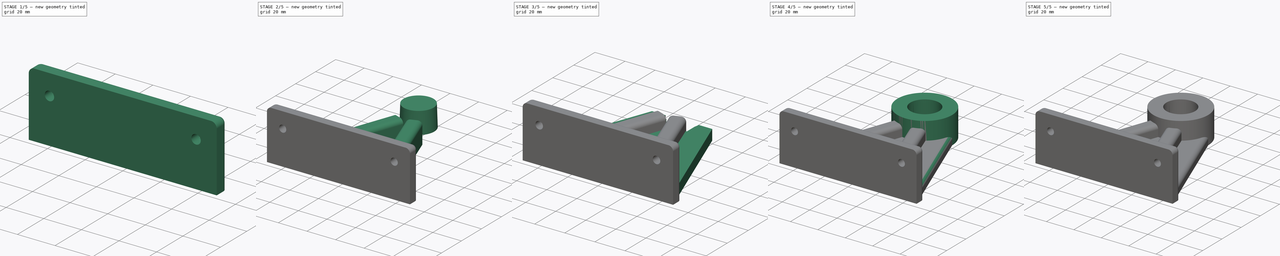
[diagram: build sequence overview — one tinted view per stage of 5, left to right]
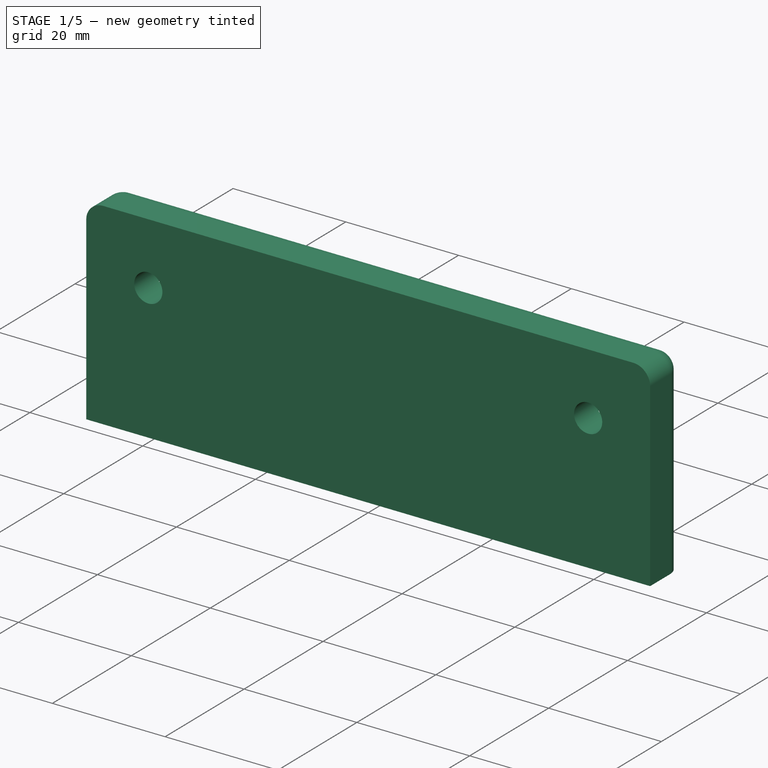
[diagram: stage 1 of 5 — iso view after this stage's code; geometry added in this stage tinted green]
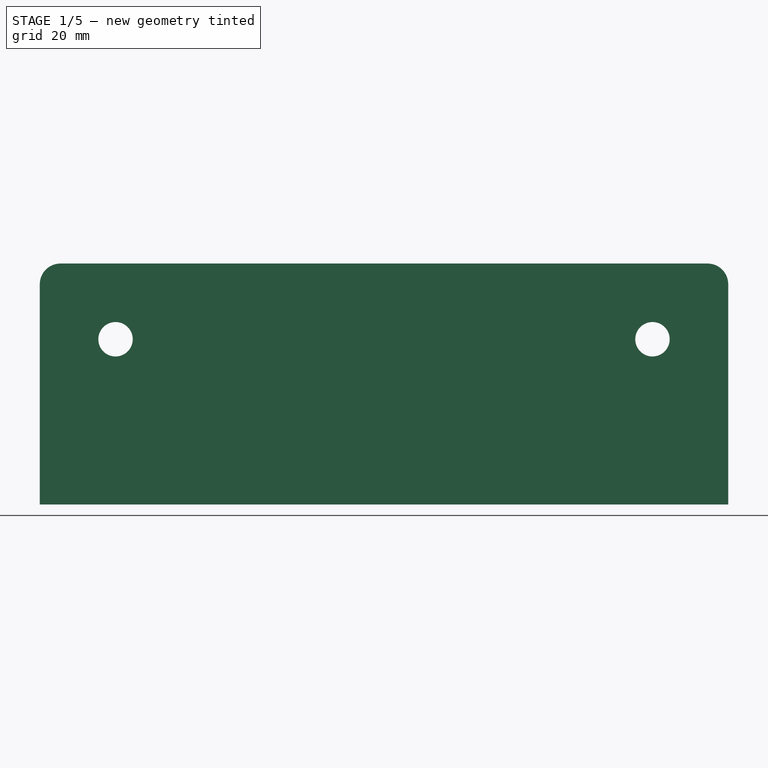
[diagram: stage 1 of 5 — front view after this stage's code; geometry added in this stage tinted green]
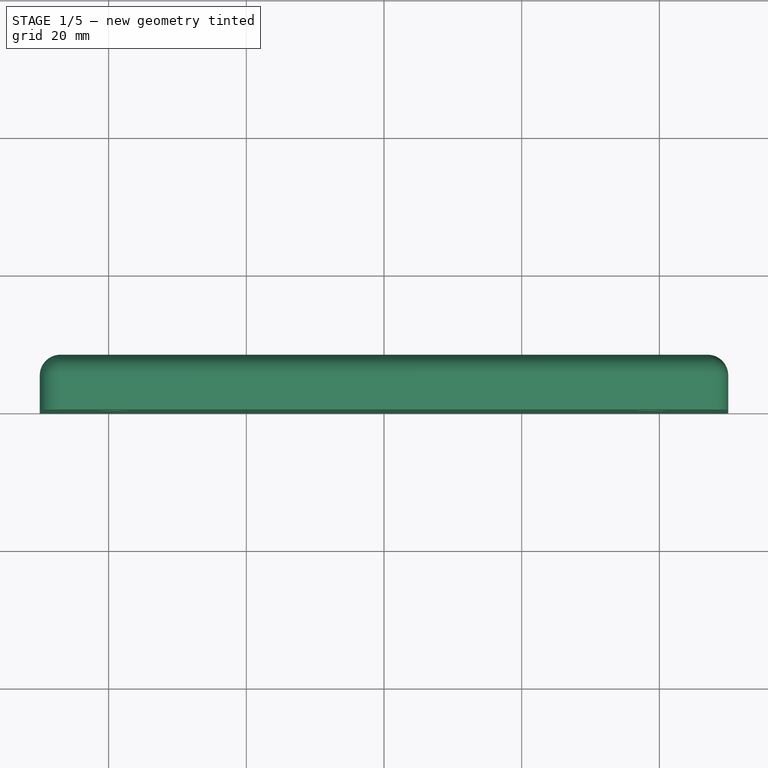
[diagram: stage 1 of 5 — top view after this stage's code; geometry added in this stage tinted green]
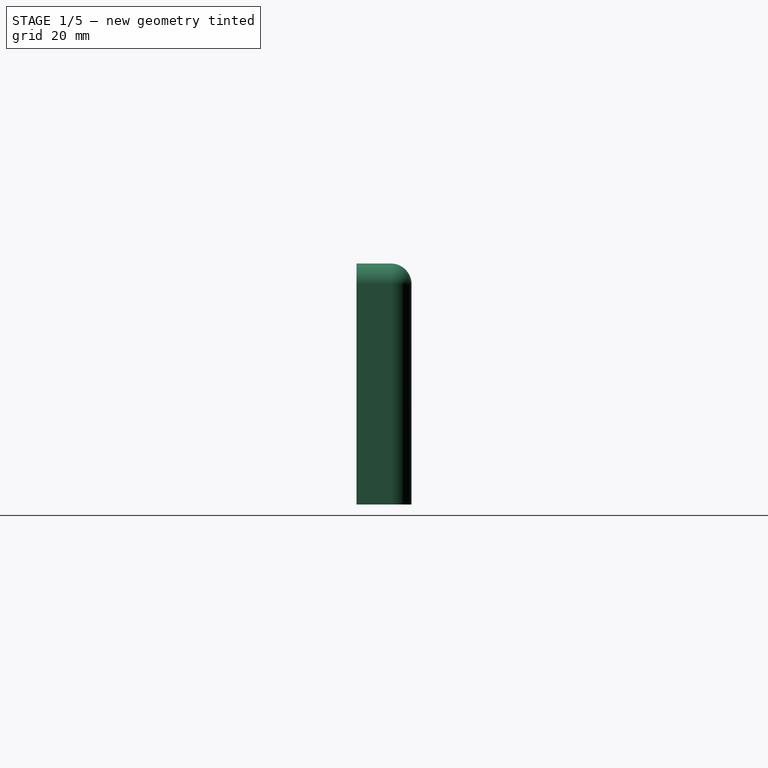
[diagram: stage 1 of 5 — right view after this stage's code; geometry added in this stage tinted green]
FCSTD DOCUMENT  (FreeCAD 0.20RUnknown)
Label: CurtainRailMount
License: All rights reserved
LicenseURL: http://en.wikipedia.org/wiki/All_rights_reserved
objects: Sketcher::SketchObject×7, Part::Face×6, Part::Extrusion×6, Part::Cut×5, Part::Fillet×5, Part::Box×3, Part::Chamfer×2, Part::Compound×2, Part::Cone×2, App::MeasureDistance×2, Spreadsheet::Sheet×1, Part::Cylinder×1
note: 39 computed .brp shape members not serialized (recipe doc carries the construction recipe); baked Part::Feature solids carry a one-line shape summary decoded from their .brp

FEATURE [Part::Box] Box  label="Cube"
  AttacherType = Attacher::AttachEngine3D
  Height = 35
  Length = 100
  Placement = pos=(-50,-80,0) rot=(0,0,1;0rad)
  Width = 8
FEATURE [Part::Fillet] Fillet002
  Base = -> Box
  Edges = 5 edges r=3: [Edge2,Edge3,Edge6,Edge7,Edge12]
FEATURE [Sketcher::SketchObject] Sketch006
  ExternalGeometry = -> [Fillet002]
  FullyConstrained = true
  MapMode = 5
  Placement = pos=(0,-72,0) rot=(0,0.707107,0.707107;3.14159rad)
  Support = -> [Fillet002]
  sketch-geometry (2):
    g0: Circle CenterX=-39 CenterY=24 CenterZ=0 NormalX=0 NormalY=0 NormalZ=1 AngleXU=0 Radius=2.5
    g1: Circle CenterX=39 CenterY=24 CenterZ=0 NormalX=0 NormalY=0 NormalZ=1 AngleXU=0 Radius=2.5
  constraints (6):
    c: Diameter(g1) = 5
    c: Diameter(g0) = 5
    c: Horizontal(g0,g1)
    c: DistanceY(g1,g-5) = 8
    c: DistanceX(g1,g-5) = 8
    c: DistanceX(g-4,g0) = 8
FEATURE [Part::Face] Face005
  FaceMakerClass = Part::FaceMakerBullseye
  Sources = -> [Sketch006]
FEATURE [Part::Extrusion] Extrude005
  Base = -> Face005
  Dir = (0,1,0)
  DirMode = 2
  FaceMakerClass = Part::FaceMakerBullseye
  LengthFwd = -10
  LengthRev = 0
  Solid = false
  Symmetric = false
FEATURE [Part::Cut] Cut004
  Base = -> Fillet002
  Tool = -> Extrude005
FEATURE [Part::Chamfer] Chamfer001
  Base = -> Cut004
  Edges = 2 edges r=2.5: [Edge25,Edge27]
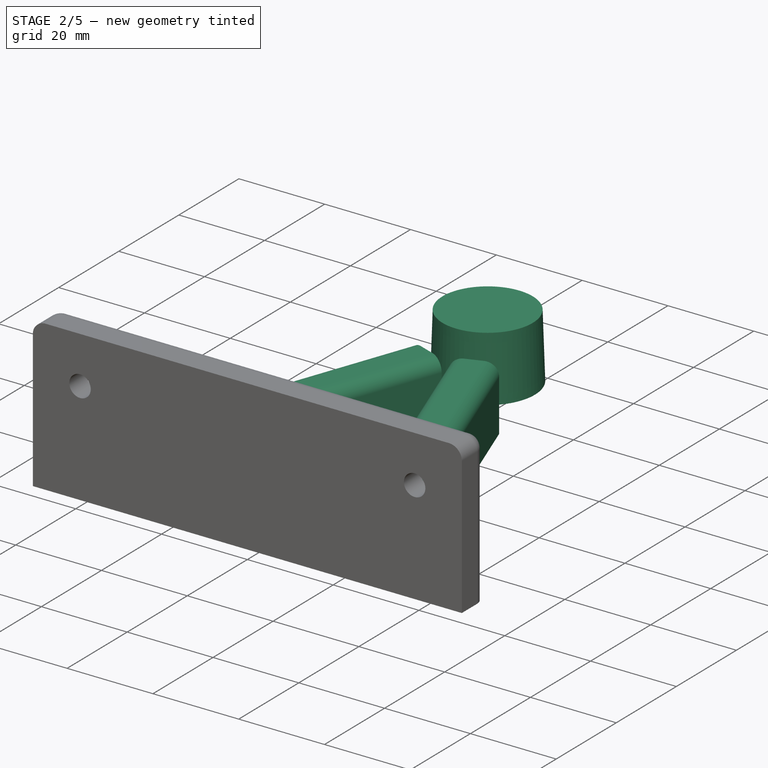
[diagram: stage 2 of 5 — iso view after this stage's code; geometry added in this stage tinted green]
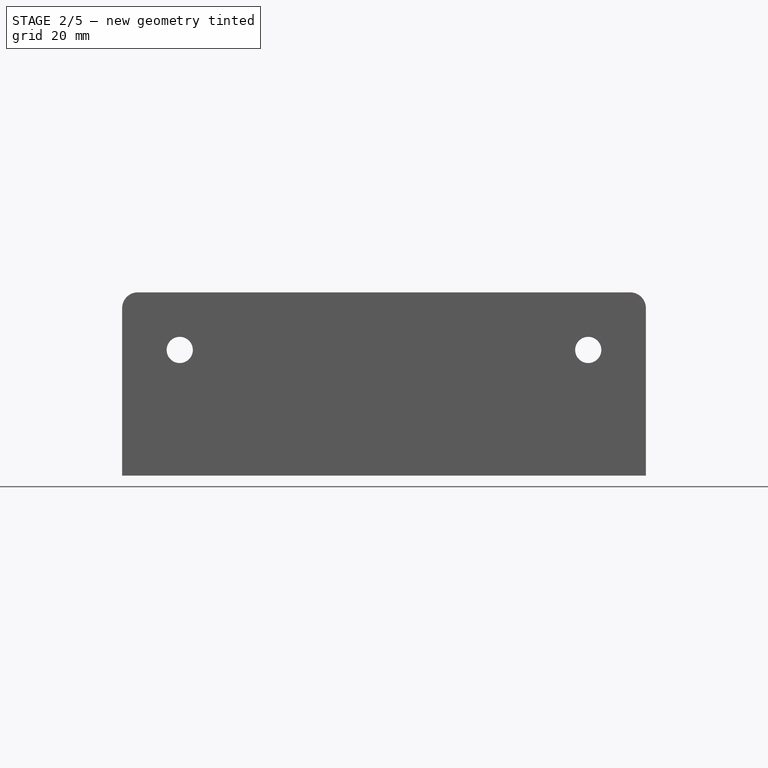
[diagram: stage 2 of 5 — front view after this stage's code; geometry added in this stage tinted green]
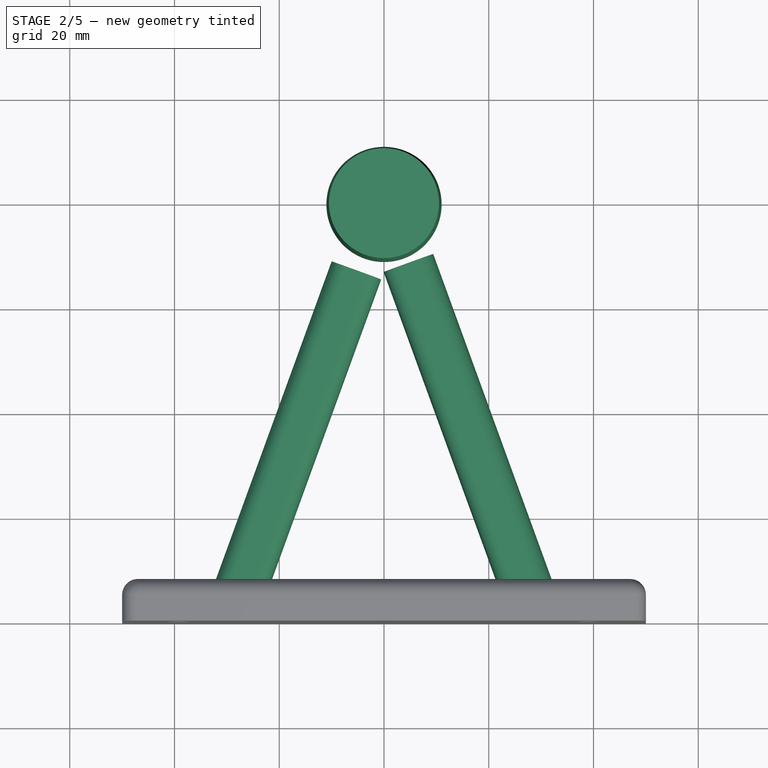
[diagram: stage 2 of 5 — top view after this stage's code; geometry added in this stage tinted green]
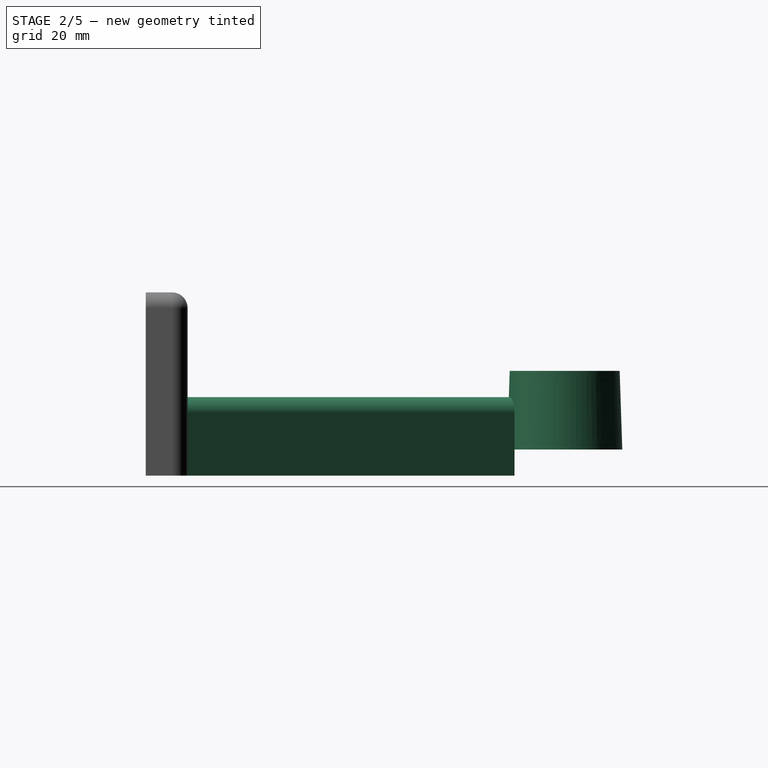
[diagram: stage 2 of 5 — right view after this stage's code; geometry added in this stage tinted green]
FEATURE [Part::Cone] Cone001
  Angle = 360
  AttacherType = Attacher::AttachEngine3D
  Height = 15
  Placement = pos=(0,0,5) rot=(0,0,1;0rad)
  Radius1 = 11
  Radius2 = 10.5
  expr: Radius1 = (Spreadsheet.rodDiameter + Spreadsheet.clearance * 2) / 2
  expr: Radius2 = (Spreadsheet.rodDiameter + Spreadsheet.clearance) / 2
FEATURE [Part::Box] Box001  label="Cube001"
  AttacherType = Attacher::AttachEngine3D
  Height = 15
  Length = 68
  Placement = pos=(-10,-11,0) rot=(0,0,-1;1.91986rad)
  Width = 10
FEATURE [Part::Box] Box002  label="Cube002"
  AttacherType = Attacher::AttachEngine3D
  Height = 15
  Length = 68
  Placement = pos=(0,-13,0) rot=(0,0,-1;1.22173rad)
  Width = 10
FEATURE [App::MeasureDistance] Distance001  label="Distance: 12.03 mm"
  Distance = 12.0309
  P1 = (-31.7249,-72,32)
  P2 = (-43.7559,-72,32)
FEATURE [App::MeasureDistance] Distance  label="Distance: 11.60 mm"
  Distance = 11.6011
  P1 = (32.2152,-72.034,32.3016)
  P2 = (43.8124,-72,32)
FEATURE [Part::Fillet] Fillet003
  Base = -> Box001
  Edges = 2 edges r=3: [Edge10,Edge12]
FEATURE [Part::Fillet] Fillet004
  Base = -> Box002
  Edges = 2 edges r=3: [Edge10,Edge12]
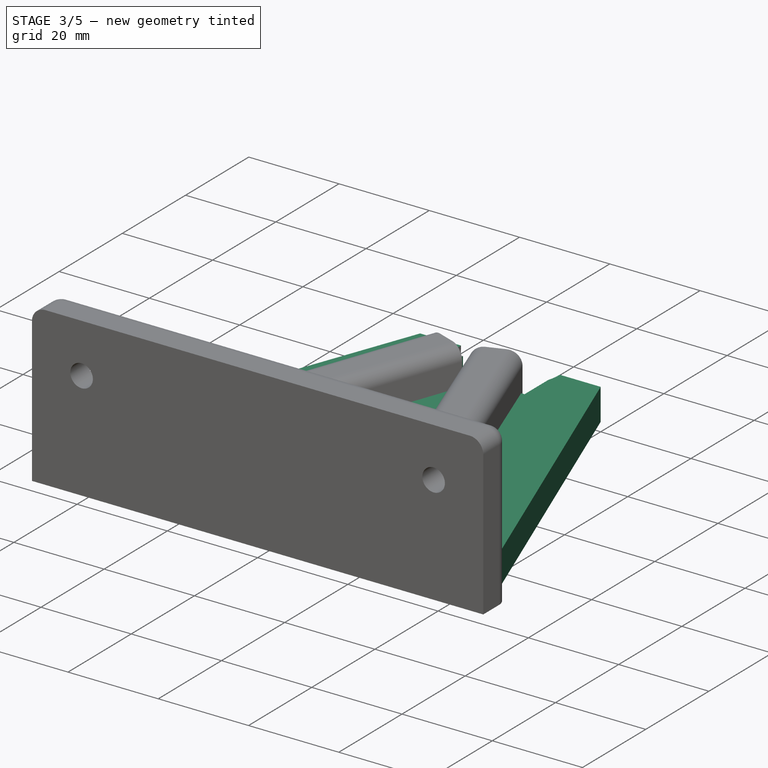
[diagram: stage 3 of 5 — iso view after this stage's code; geometry added in this stage tinted green]
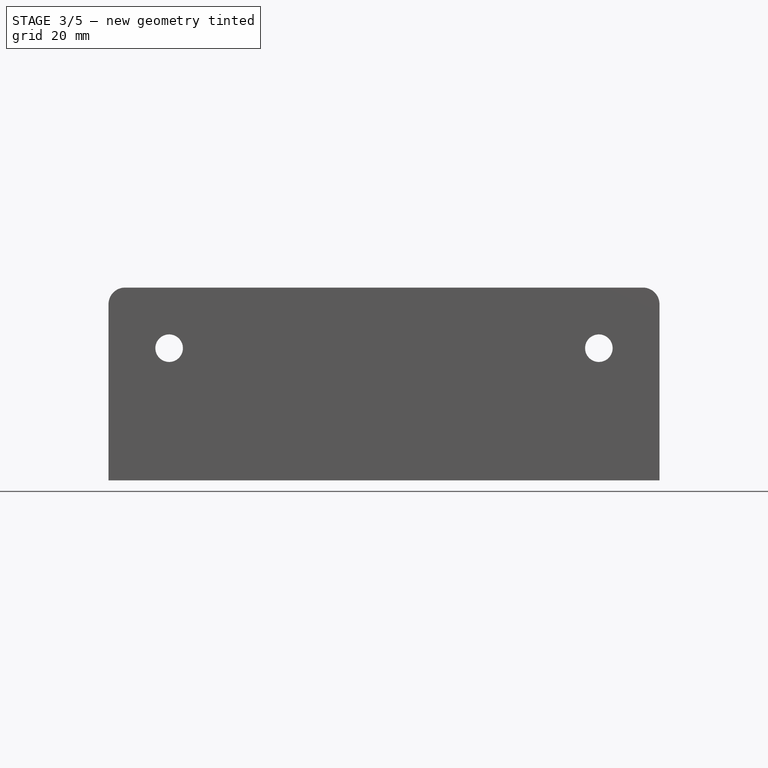
[diagram: stage 3 of 5 — front view after this stage's code; geometry added in this stage tinted green]
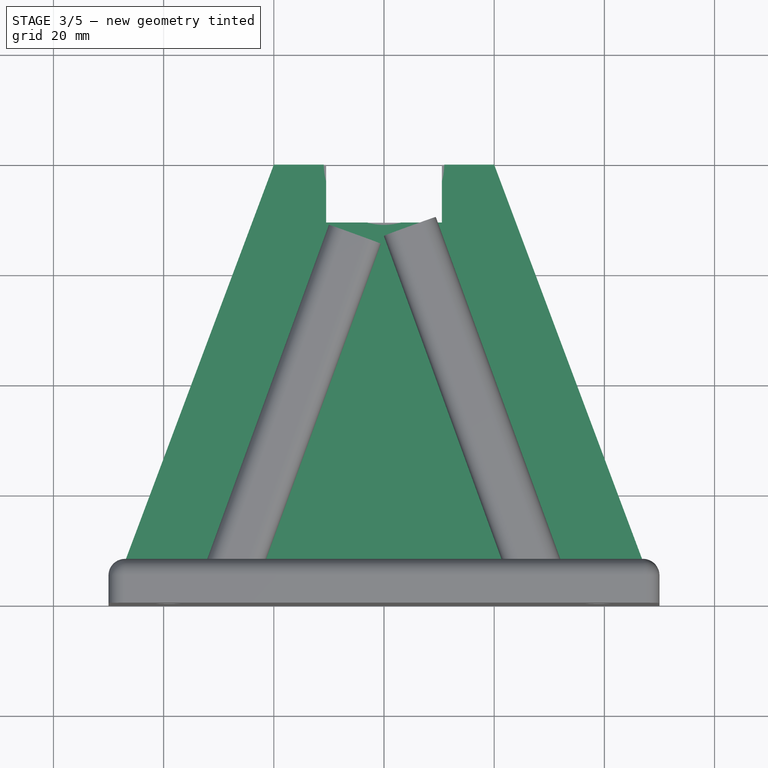
[diagram: stage 3 of 5 — top view after this stage's code; geometry added in this stage tinted green]
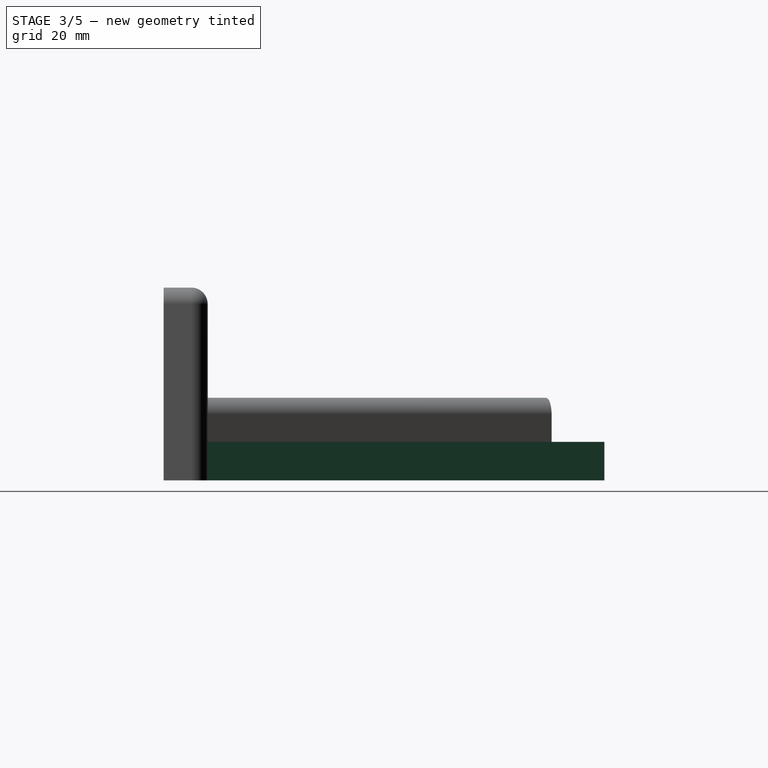
[diagram: stage 3 of 5 — right view after this stage's code; geometry added in this stage tinted green]
FEATURE [Spreadsheet::Sheet] Spreadsheet
  cells = A1=Rod diameter; B1(rodDiameter)==20mm; A2=Clearance; B2(clearance)==1mm; A3=Brim; B3(brimWidth)==10mm; A4=Back wall; B4(backWall)==5mm; A5=Brim Height; B5(brimHeight)==15mm; A6=Screw Diameter; B6(screwDiameter)==5mm
FEATURE [Sketcher::SketchObject] Sketch
  FullyConstrained = true
  expr: Constraints[1] = Spreadsheet.brimWidth * 2 + Spreadsheet.rodDiameter
  sketch-geometry (1):
    g0: Circle CenterX=0 CenterY=0 CenterZ=0 NormalX=0 NormalY=0 NormalZ=1 AngleXU=0 Radius=20
  constraints (2):
    c: Coincident(g0,g-1)
    c: Diameter(g0) = 40
FEATURE [Part::Face] Face
  FaceMakerClass = Part::FaceMakerBullseye
  Sources = -> [Sketch]
FEATURE [Part::Extrusion] Extrude
  Base = -> Sketch
  Dir = (0,0,1)
  DirMode = 2
  FaceMakerClass = Part::FaceMakerBullseye
  LengthFwd = 4
  LengthRev = 0
  Solid = true
  Symmetric = false
FEATURE [Part::Cylinder] Cylinder
  Angle = 360
  AttacherType = Attacher::AttachEngine3D
  FirstAngle = 0
  Height = 20
  Radius = 20
  SecondAngle = 0
  expr: Height = Spreadsheet.backWall + Spreadsheet.brimHeight
  expr: Radius = Spreadsheet.brimWidth + Spreadsheet.rodDiameter / 2
FEATURE [Part::Cone] Cone
  Angle = 360
  AttacherType = Attacher::AttachEngine3D
  Height = 15
  Placement = pos=(0,0,5) rot=(0,0,1;0rad)
  Radius1 = 11
  Radius2 = 10.5
  expr: Radius1 = (Spreadsheet.rodDiameter + Spreadsheet.clearance * 2) / 2
  expr: Radius2 = (Spreadsheet.rodDiameter + Spreadsheet.clearance) / 2
FEATURE [Part::Cut] Cut002
  Base = -> Cylinder
  Tool = -> Cone
FEATURE [Sketcher::SketchObject] Sketch005
  ExternalGeometry = -> [Cut002,Sketch001]
  FullyConstrained = true
  sketch-geometry (10):
    g0: LineSegment StartX=-20 StartY=0 StartZ=0 EndX=-10.5 EndY=0 EndZ=0
    g1: LineSegment StartX=-10.5 StartY=0 StartZ=0 EndX=-10.5 EndY=-10.5 EndZ=0
    g2: LineSegment StartX=-10.5 StartY=-10.5 StartZ=0 EndX=10.5 EndY=-10.5 EndZ=0
    g3: LineSegment StartX=10.5 StartY=-10.5 StartZ=0 EndX=10.5 EndY=0 EndZ=0
    g4: LineSegment StartX=10.5 StartY=0 StartZ=0 EndX=20 EndY=0 EndZ=0
    g5: LineSegment StartX=20 StartY=0 StartZ=0 EndX=50 EndY=-80 EndZ=0
    g6: LineSegment StartX=-50 StartY=-80 StartZ=0 EndX=-20 EndY=0 EndZ=0
    g7: GeomPoint X=0 Y=-10.5 Z=0
    g8: LineSegment StartX=50 StartY=-80 StartZ=0 EndX=0 EndY=-80 EndZ=0
    g9: LineSegment StartX=0 StartY=-80 StartZ=0 EndX=-50 EndY=-80 EndZ=0
  constraints (29):
    c: PointOnObject(g0,g-1)
    c: Coincident(g0,g1)
    c: Coincident(g1,g2)
    c: Coincident(g2,g3)
    c: Coincident(g3,g4)
    c: Coincident(g4,g5)
    c: Coincident(g5,g8)
    c: Coincident(g9,g6)
    c: Coincident(g6,g0)
    c: PointOnObject(g0,g-3)
    c: PointOnObject(g0,g-4)
    c: PointOnObject(g0,g-1)
    c: Vertical(g1,g0)
    c: PointOnObject(g3,g-1)
    c: PointOnObject(g3,g-4)
    c: Vertical(g2,g3)
    c: PointOnObject(g7,g2)
    c: PointOnObject(g7,g-2)
    c: PointOnObject(g7,g-4)
    c: Horizontal(g1,g7)
    c: PointOnObject(g4,g-1)
    c: PointOnObject(g4,g-3)
    c: Coincident(g8,g9)
    c: Horizontal(g8)
    c: Horizontal(g9)
    c: Equal(g9,g8)
    c: PointOnObject(g8,g-2)
    c: DistanceY(g5,g4) = 80
    c: DistanceX(g6,g5) = 100
FEATURE [Part::Face] Face004
  FaceMakerClass = Part::FaceMakerBullseye
  Sources = -> [Sketch005]
FEATURE [Part::Extrusion] Extrude004
  Base = -> Sketch005
  Dir = (0,0,1)
  DirMode = 2
  FaceMakerClass = Part::FaceMakerBullseye
  LengthFwd = 7
  LengthRev = 0
  Solid = true
  Symmetric = false
FEATURE [Part::Cut] Cut003
  Base = -> Extrude004
  Tool = -> Cone001
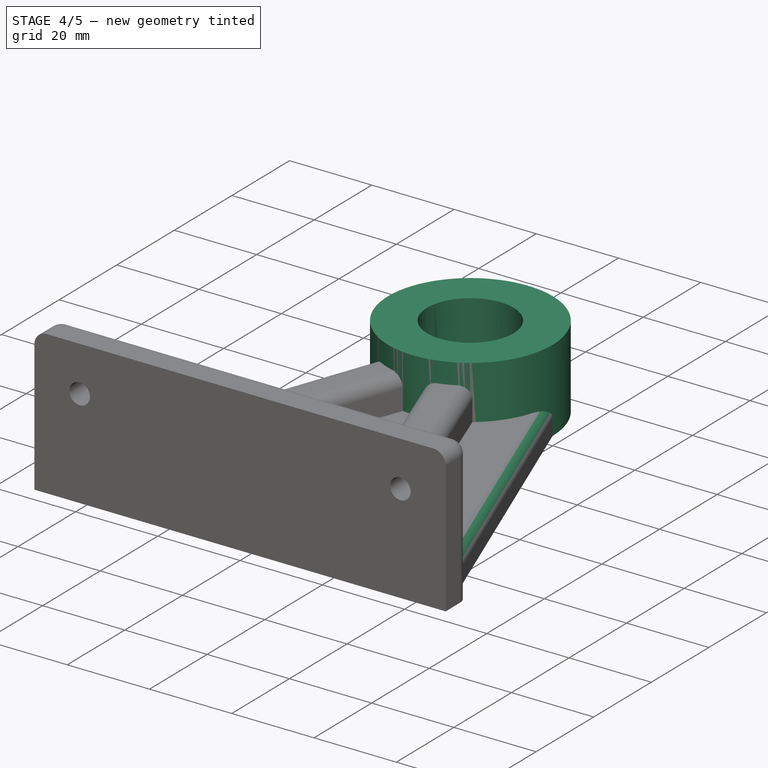
[diagram: stage 4 of 5 — iso view after this stage's code; geometry added in this stage tinted green]
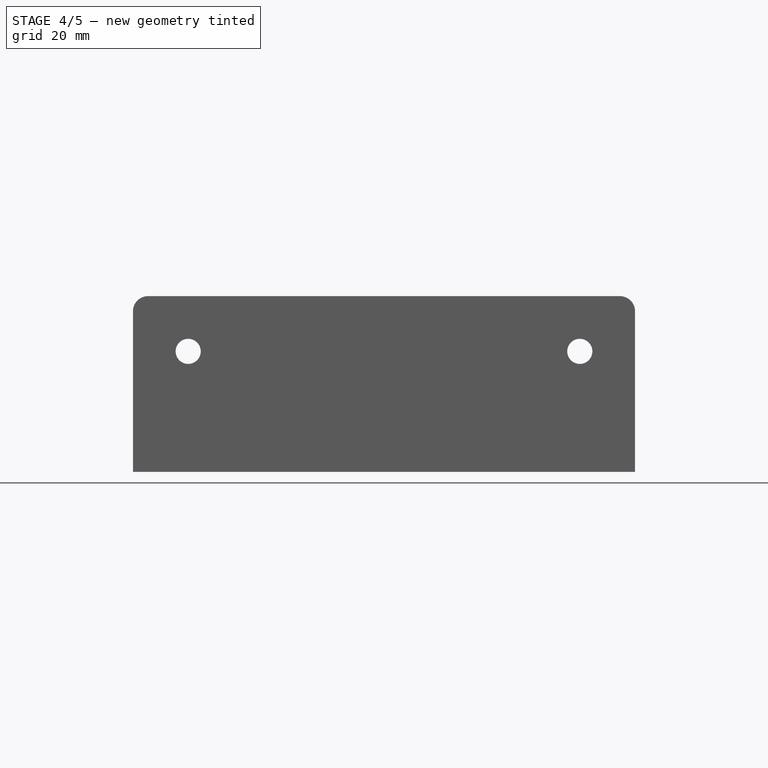
[diagram: stage 4 of 5 — front view after this stage's code; geometry added in this stage tinted green]
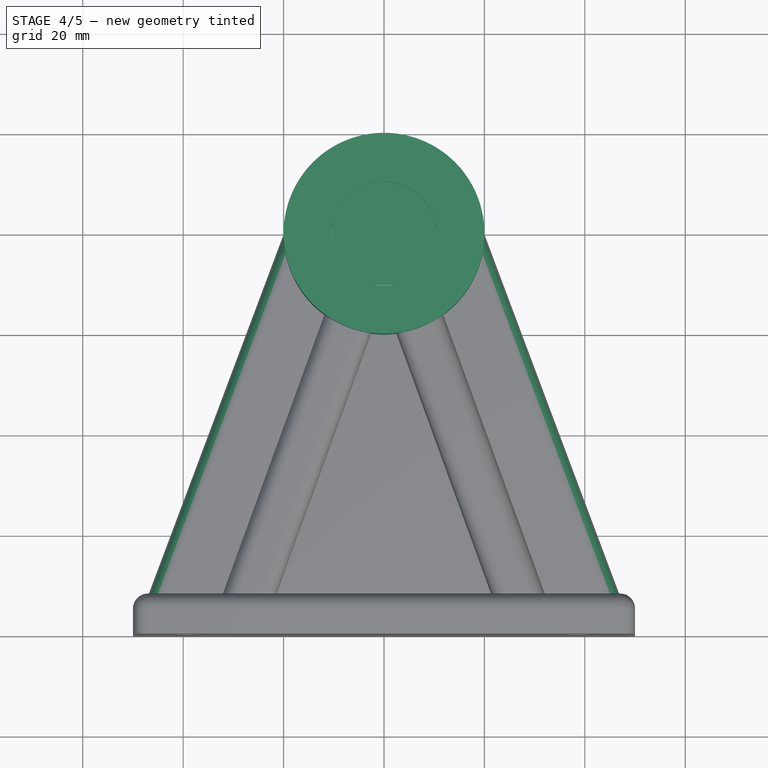
[diagram: stage 4 of 5 — top view after this stage's code; geometry added in this stage tinted green]
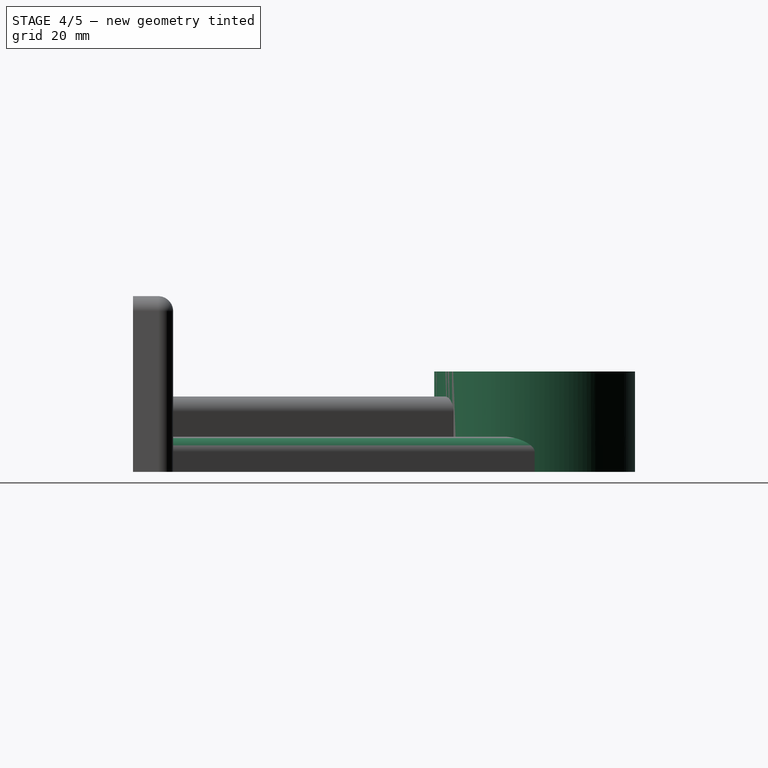
[diagram: stage 4 of 5 — right view after this stage's code; geometry added in this stage tinted green]
FEATURE [Sketcher::SketchObject] Sketch001
  ExternalGeometry = -> [Extrude]
  FullyConstrained = true
  MapMode = 5
  Placement = pos=(0,0,4) rot=(0,0,1;0rad)
  Support = -> [Extrude]
  expr: Constraints[5] = Spreadsheet.rodDiameter + Spreadsheet.clearance
  sketch-geometry (3):
    g0: Circle CenterX=0 CenterY=0 CenterZ=0 NormalX=0 NormalY=0 NormalZ=1 AngleXU=0 Radius=10.5
    g1: Circle CenterX=0 CenterY=0 CenterZ=0 NormalX=0 NormalY=0 NormalZ=1 AngleXU=0 Radius=20
    g2: GeomPoint X=20 Y=0 Z=0
  constraints (6):
    c: Coincident(g0,g-3)
    c: Coincident(g1,g0)
    c: PointOnObject(g2,g-3)
    c: PointOnObject(g2,g-1)
    c: PointOnObject(g2,g1)
    c: Diameter(g0) = 21
FEATURE [Part::Face] Face001
  FaceMakerClass = Part::FaceMakerBullseye
  Sources = -> [Sketch001]
FEATURE [Part::Extrusion] Extrude001
  Base = -> Face001
  Dir = (0,0,1)
  DirMode = 2
  FaceMakerClass = Part::FaceMakerBullseye
  LengthFwd = 16
  LengthRev = 0
  Solid = false
  Symmetric = false
FEATURE [Sketcher::SketchObject] Sketch002
  FullyConstrained = true
  MapMode = 5
  Placement = pos=(0,0,20) rot=(0,0,1;0rad)
  Support = -> [Extrude001]
  expr: Constraints[12] = Spreadsheet.rodDiameter + Spreadsheet.clearance / 2
  sketch-geometry (5):
    g0: LineSegment StartX=0 StartY=0 StartZ=0 EndX=10.25 EndY=0 EndZ=0
    g1: LineSegment StartX=10.25 StartY=0 StartZ=0 EndX=10.25 EndY=25 EndZ=0
    g2: LineSegment StartX=10.25 StartY=25 StartZ=0 EndX=-10.25 EndY=25 EndZ=0
    g3: LineSegment StartX=-10.25 StartY=25 StartZ=0 EndX=-10.25 EndY=0 EndZ=0
    g4: LineSegment StartX=-10.25 StartY=0 StartZ=0 EndX=0 EndY=0 EndZ=0
  constraints (14):
    c: Coincident(g0,g-1)
    c: PointOnObject(g0,g-1)
    c: Coincident(g1,g0)
    c: Vertical(g1)
    c: Coincident(g2,g1)
    c: Horizontal(g2)
    c: Coincident(g3,g2)
    c: PointOnObject(g3,g-1)
    c: Vertical(g3)
    c: Coincident(g4,g3)
    c: Coincident(g4,g0)
    c: Equal(g0,g4)
    c: DistanceX(g2,g2) = 20.5
    c: DistanceY(g1,g1) = 25
FEATURE [Part::Face] Face002
  FaceMakerClass = Part::FaceMakerBullseye
  Sources = -> [Sketch002]
FEATURE [Part::Extrusion] Extrude002
  Base = -> Sketch002
  Dir = (0,0,1)
  DirMode = 2
  FaceMakerClass = Part::FaceMakerBullseye
  LengthFwd = -13
  LengthRev = 0
  Solid = true
  Symmetric = false
FEATURE [Part::Cut] Cut
  Base = -> Extrude001
  Tool = -> Extrude002
FEATURE [Part::Fillet] Fillet001
  Base = -> Cut003
  Edges = 2 edges r=3: [Edge27,Edge30]
FEATURE [Part::Compound] Compound001  label="CenterPiece"
  Links = -> [Cut002,Fillet001,Fillet003,Fillet004,Chamfer001]
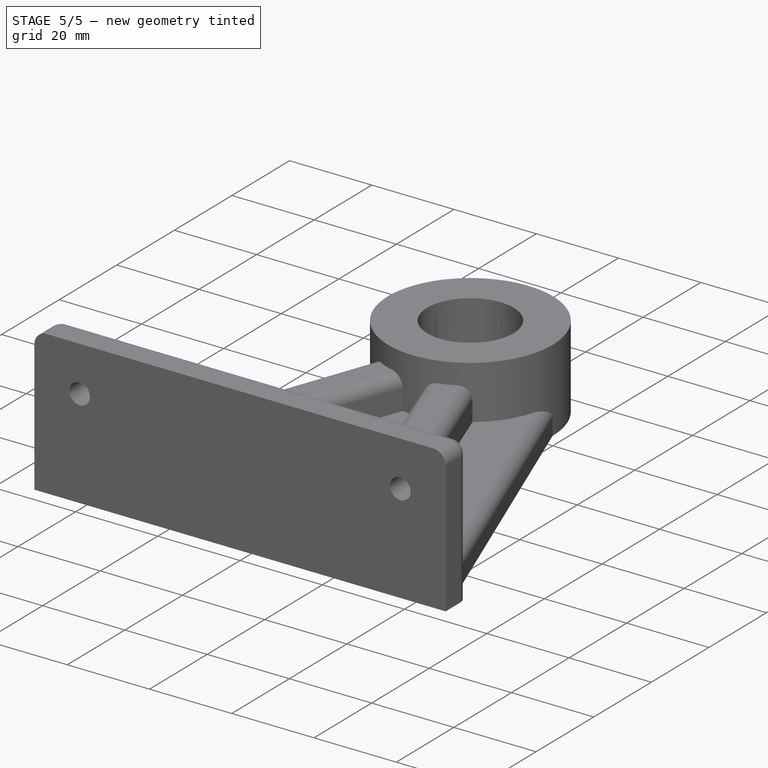
[diagram: stage 5 of 5 — iso view after this stage's code; geometry added in this stage tinted green]
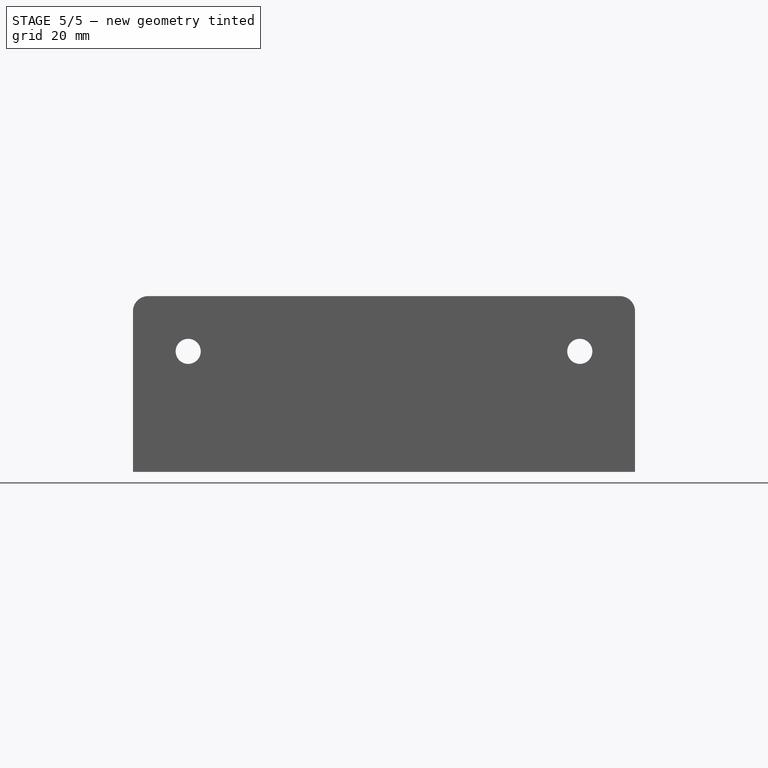
[diagram: stage 5 of 5 — front view after this stage's code; geometry added in this stage tinted green]
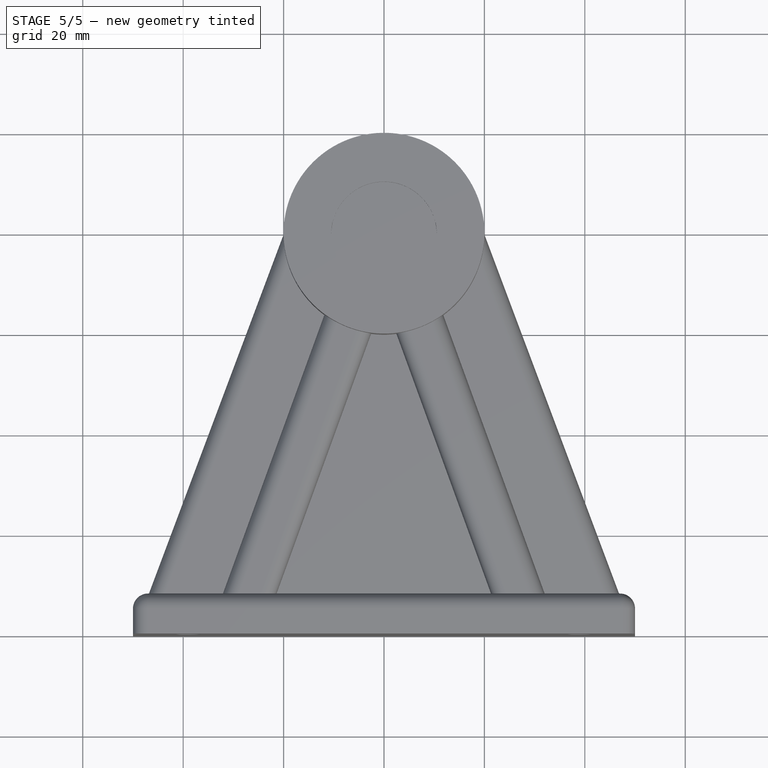
[diagram: stage 5 of 5 — top view after this stage's code; geometry added in this stage tinted green]
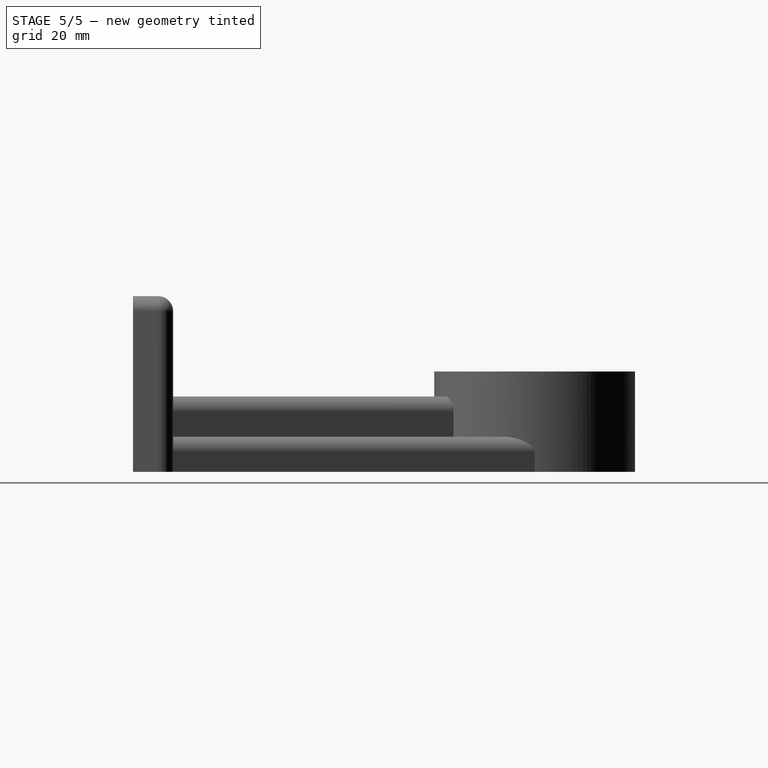
[diagram: stage 5 of 5 — right view after this stage's code; geometry added in this stage tinted green]
FEATURE [Sketcher::SketchObject] Sketch003
  FullyConstrained = true
  MapMode = 5
  Placement = pos=(0,0,4) rot=(0,0,1;0rad)
  Support = -> [Extrude]
  expr: Constraints[1] = Spreadsheet.screwDiameter
  sketch-geometry (1):
    g0: Circle CenterX=0 CenterY=0 CenterZ=0 NormalX=0 NormalY=0 NormalZ=1 AngleXU=0 Radius=2.5
  constraints (2):
    c: Coincident(g0,g-1)
    c: Diameter(g0) = 5
FEATURE [Part::Face] Face003
  FaceMakerClass = Part::FaceMakerBullseye
  Sources = -> [Sketch003]
FEATURE [Part::Extrusion] Extrude003
  Base = -> Face003
  Dir = (0,0,1)
  DirMode = 2
  FaceMakerClass = Part::FaceMakerBullseye
  LengthFwd = -10
  LengthRev = 0
  Solid = false
  Symmetric = false
FEATURE [Part::Cut] Cut001
  Base = -> Extrude
  Tool = -> Extrude003
FEATURE [Part::Chamfer] Chamfer
  Base = -> Cut001
  Edges = 1 edges r=2.5: [Edge5]
FEATURE [Sketcher::SketchObject] Sketch004
  FullyConstrained = true
FEATURE [Part::Fillet] Fillet
  Base = -> Cut
  Edges = 4 edges r=0.5: [Edge4,Edge6,Edge13,Edge17]
FEATURE [Part::Compound] Compound  label="SIdes"
  Links = -> [Chamfer,Fillet]
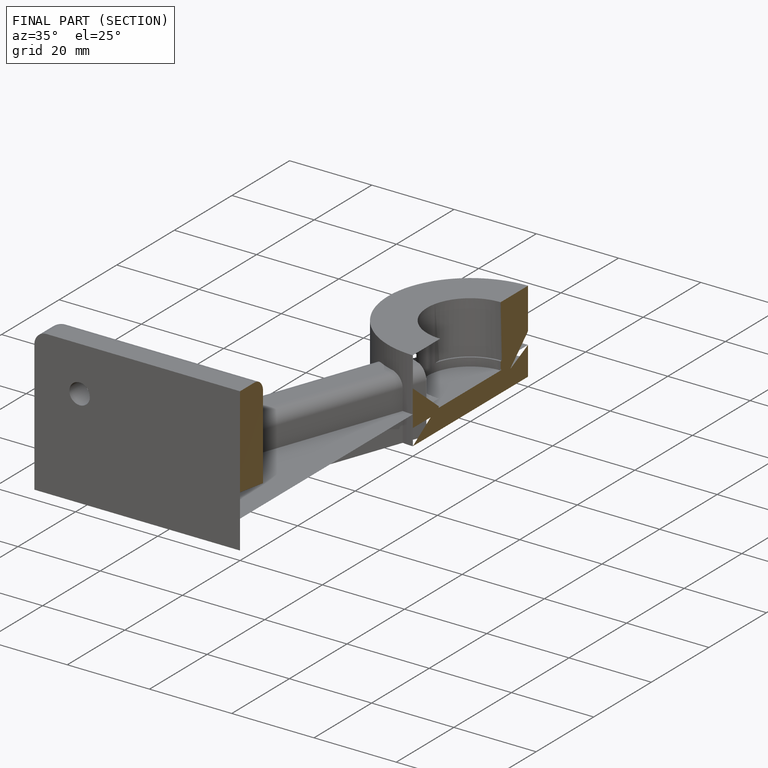
[diagram: finished part — half-section view (interior)]
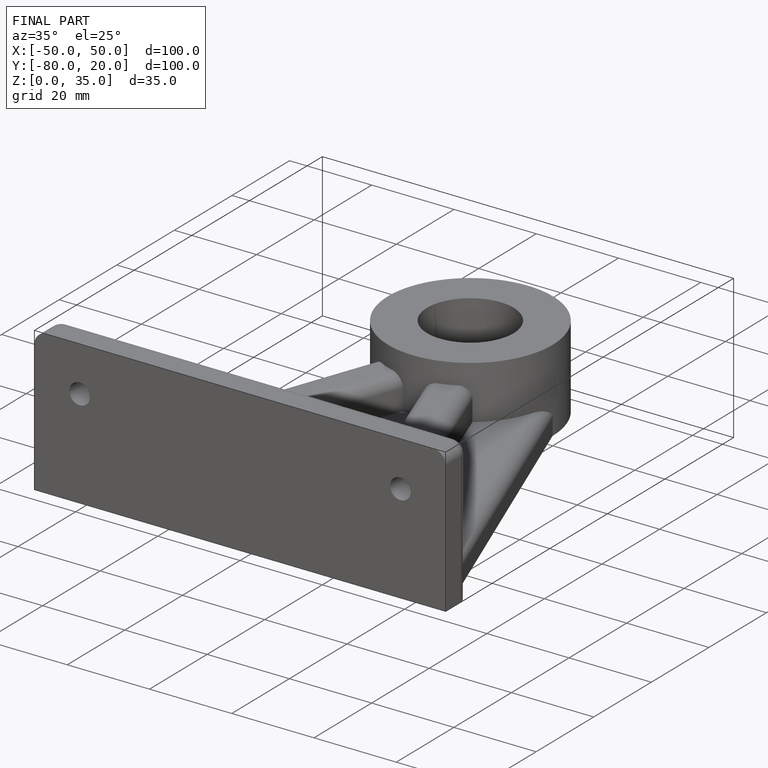
[diagram: finished part — iso view with bounding-box wireframe]
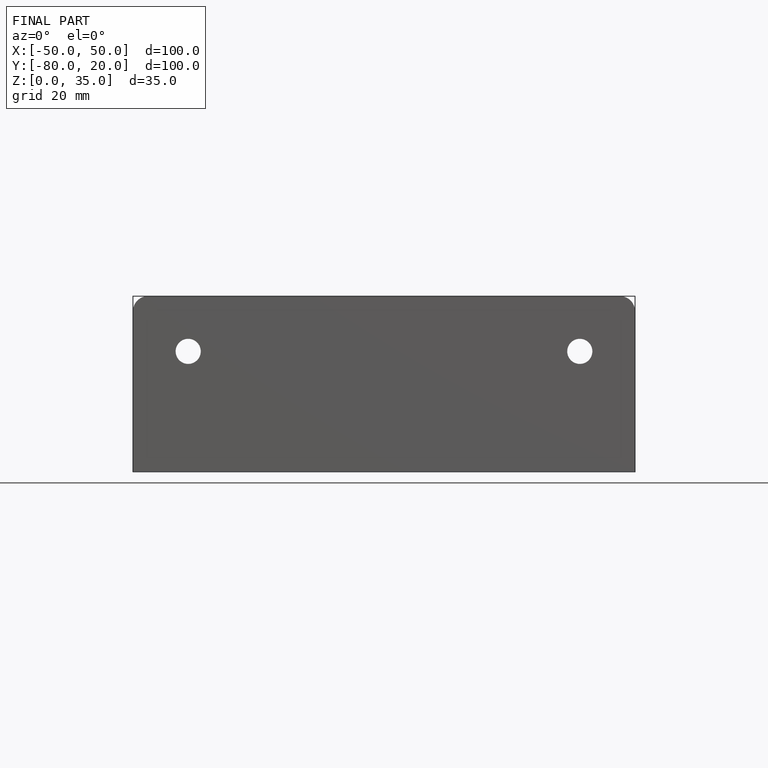
[diagram: finished part — front view with bounding-box wireframe]
